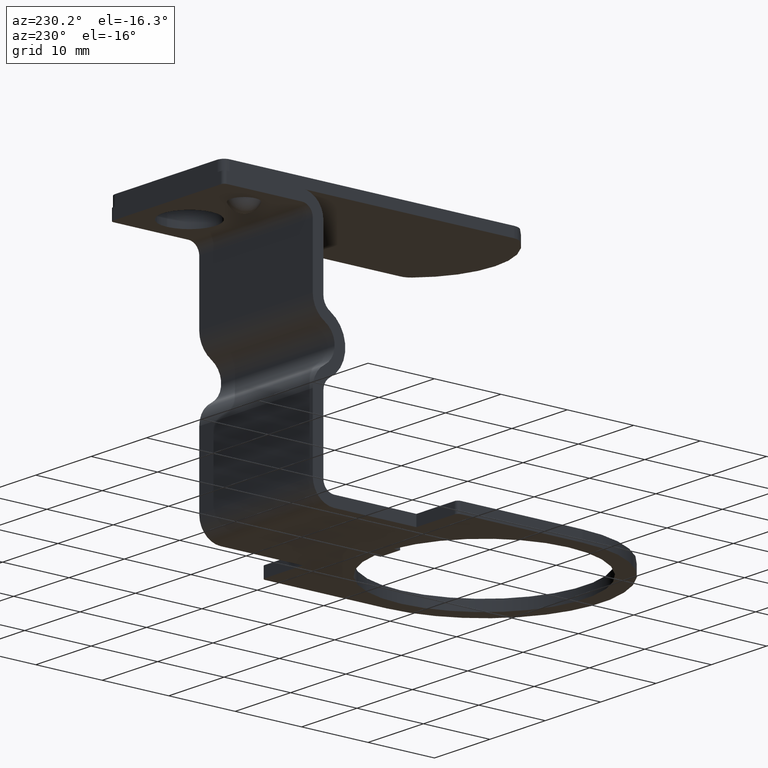
[diagram: clean part render]
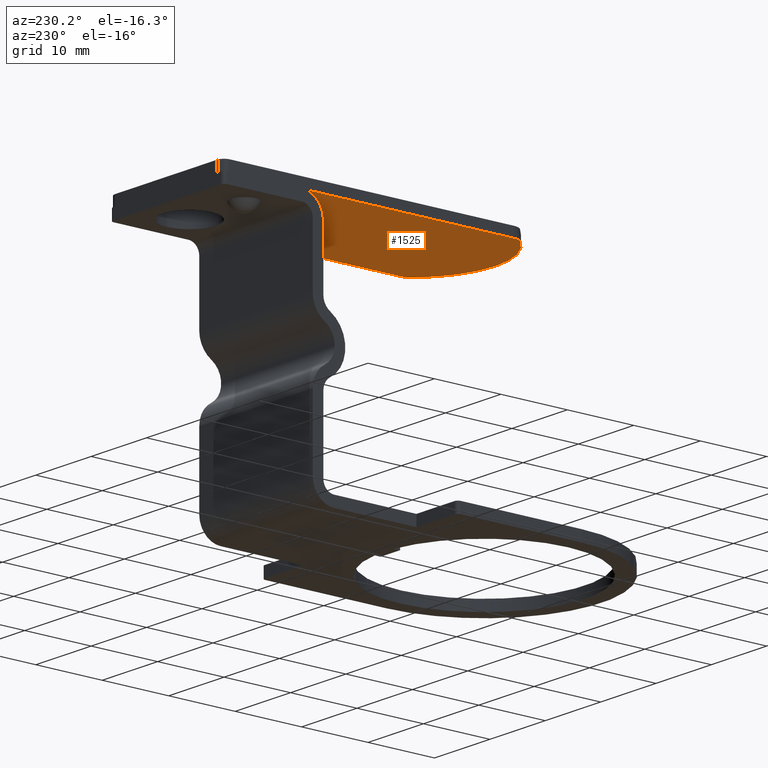
[diagram: same view with one face highlighted and labeled with its STEP entity id]
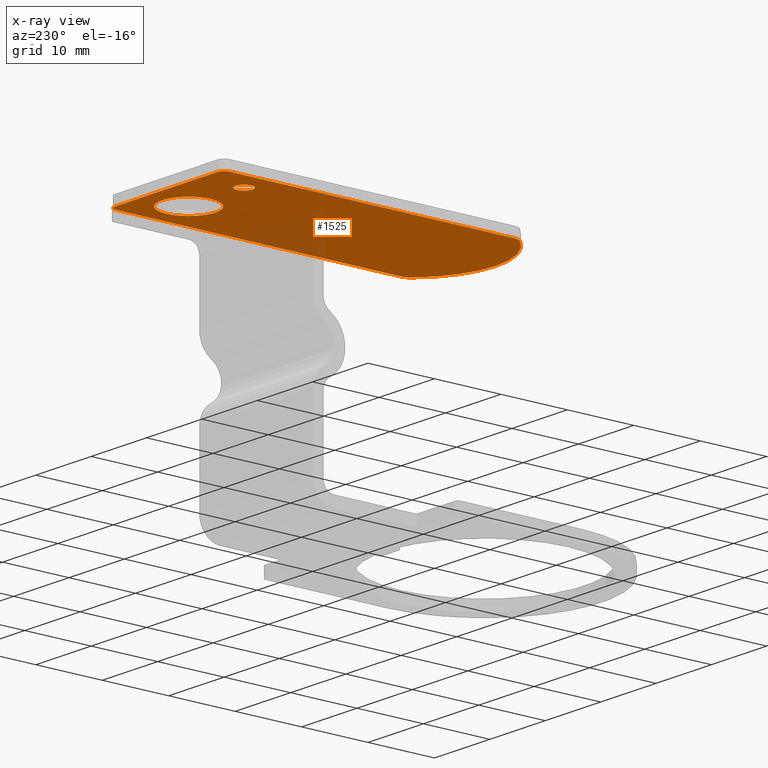
[diagram: x-ray of the same camera — body ghosted, the highlighted face saturated]
A machine part, auxiliary view. The second image highlights one B-rep face of the part: STEP entity #1525.
The next image is the same camera in x-ray: the body ghosted, the highlighted face saturated — about 12% of this face is hidden behind the body in this view.
In plain terms, the highlighted planar face has unit normal (0, -0, 1).
Its self-contained STEP definition (entity closure, byte-faithful):
#1387=CARTESIAN_POINT('',(17.590537004942465,15.195594190789063,0.0));
#1388=VERTEX_POINT('',#1387);
#1395=CARTESIAN_POINT('',(16.590537004942465,16.195594190789066,0.0));
#1396=VERTEX_POINT('',#1395);
#1397=CARTESIAN_POINT('',(16.590537004942465,15.195594190789063,0.0));
#1398=DIRECTION('',(0.0,0.0,1.000000000000000));
#1399=DIRECTION('',(0.707106781186548,0.707106781186548,0.0));
#1400=AXIS2_PLACEMENT_3D('',#1397,#1398,#1399);
#1401=CIRCLE('',#1400,1.000000000000000);
#1402=EDGE_CURVE('',#1388,#1396,#1401,.T.);
#1419=CARTESIAN_POINT('',(-1.909462995057537,16.195594190789066,0.0));
#1420=VERTEX_POINT('',#1419);
#1421=CARTESIAN_POINT('',(-1.909462995057537,16.195594190789066,0.0));
#1422=DIRECTION('',(1.0,0.0,0.0));
#1423=VECTOR('',#1422,18.500000000000004);
#1424=LINE('',#1421,#1423);
#1425=EDGE_CURVE('',#1420,#1396,#1424,.T.);
#1444=CARTESIAN_POINT('',(7.340537004942467,-7.090099953186206,0.0));
#1445=DIRECTION('',(0.0,0.0,1.0));
#1446=DIRECTION('',(1.0,0.0,0.0));
#1447=AXIS2_PLACEMENT_3D('',#1444,#1445,#1446);
#1448=PLANE('',#1447);
#1449=ORIENTED_EDGE('',*,*,#1402,.F.);
#1450=CARTESIAN_POINT('',(17.590537004942473,-27.580221914638557,0.0));
#1451=VERTEX_POINT('',#1450);
#1452=CARTESIAN_POINT('',(17.590537004942465,15.195594190789063,0.0));
#1453=DIRECTION('',(0.0,-1.0,0.0));
#1454=VECTOR('',#1453,42.775816105427623);
#1455=LINE('',#1452,#1454);
#1456=EDGE_CURVE('',#1388,#1451,#1455,.T.);
#1457=ORIENTED_EDGE('',*,*,#1456,.T.);
#1458=CARTESIAN_POINT('',(17.090537004942476,-28.903097570170850,0.0));
#1459=VERTEX_POINT('',#1458);
#1460=CARTESIAN_POINT('',(15.590537004942506,-27.580221914638567,0.0));
#1461=DIRECTION('',(0.0,0.0,-1.0));
#1462=DIRECTION('',(-0.749999999999997,0.661437827766151,0.0));
#1463=AXIS2_PLACEMENT_3D('',#1460,#1461,#1462);
#1464=CIRCLE('',#1463,1.999999999999966);
#1465=EDGE_CURVE('',#1451,#1459,#1464,.T.);
#1466=ORIENTED_EDGE('',*,*,#1465,.T.);
#1467=CARTESIAN_POINT('',(-2.409462995057530,-28.903097570170864,0.0));
#1468=VERTEX_POINT('',#1467);
#1469=CARTESIAN_POINT('',(7.340537004942465,-20.304405809210941,0.0));
#1470=DIRECTION('',(0.0,0.0,-1.0));
#1471=DIRECTION('',(0.750000000000000,0.661437827766148,0.0));
#1472=AXIS2_PLACEMENT_3D('',#1469,#1470,#1471);
#1473=CIRCLE('',#1472,13.0);
#1474=EDGE_CURVE('',#1459,#1468,#1473,.T.);
#1475=ORIENTED_EDGE('',*,*,#1474,.T.);
#1476=CARTESIAN_POINT('',(-2.909462995057528,-27.580221914638571,0.0));
#1477=VERTEX_POINT('',#1476);
#1478=CARTESIAN_POINT('',(-0.909462995057510,-27.580221914638567,0.0));
#1479=DIRECTION('',(0.0,0.0,-1.0));
#1480=DIRECTION('',(1.0,0.0,0.0));
#1481=AXIS2_PLACEMENT_3D('',#1478,#1479,#1480);
#1482=CIRCLE('',#1481,2.000000000000018);
#1483=EDGE_CURVE('',#1468,#1477,#1482,.T.);
#1484=ORIENTED_EDGE('',*,*,#1483,.T.);
#1485=CARTESIAN_POINT('',(-2.909462995057537,15.195594190789063,0.0));
#1486=VERTEX_POINT('',#1485);
#1487=CARTESIAN_POINT('',(-2.909462995057528,-27.580221914638571,0.0));
#1488=DIRECTION('',(0.0,1.0,0.0));
#1489=VECTOR('',#1488,42.775816105427637);
#1490=LINE('',#1487,#1489);
#1491=EDGE_CURVE('',#1477,#1486,#1490,.T.);
#1492=ORIENTED_EDGE('',*,*,#1491,.T.);
#1493=CARTESIAN_POINT('',(-1.909462995057537,15.195594190789063,0.0));
#1494=DIRECTION('',(0.0,0.0,1.0));
#1495=DIRECTION('',(-0.707106781186547,0.707106781186548,0.0));
#1496=AXIS2_PLACEMENT_3D('',#1493,#1494,#1495);
#1497=CIRCLE('',#1496,1.000000000000000);
#1498=EDGE_CURVE('',#1420,#1486,#1497,.T.);
#1499=ORIENTED_EDGE('',*,*,#1498,.F.);
#1500=ORIENTED_EDGE('',*,*,#1425,.T.);
#1501=EDGE_LOOP('',(#1449,#1457,#1466,#1475,#1484,#1492,#1499,#1500));
#1502=FACE_OUTER_BOUND('',#1501,.T.);
#1503=CARTESIAN_POINT('',(2.340537004942464,9.695594190789066,0.0));
#1504=VERTEX_POINT('',#1503);
#1505=CARTESIAN_POINT('',(1.090537004942464,9.695594190789066,0.0));
#1506=DIRECTION('',(0.0,0.0,1.0));
#1507=DIRECTION('',(-1.0,0.0,0.0));
#1508=AXIS2_PLACEMENT_3D('',#1505,#1506,#1507);
#1509=CIRCLE('',#1508,1.250000000000000);
#1510=EDGE_CURVE('',#1504,#1504,#1509,.T.);
#1511=ORIENTED_EDGE('',*,*,#1510,.T.);
#1512=EDGE_LOOP('',(#1511));
#1513=FACE_BOUND('',#1512,.T.);
#1514=CARTESIAN_POINT('',(15.090537004942464,9.695594190789066,0.0));
#1515=VERTEX_POINT('',#1514);
#1516=CARTESIAN_POINT('',(11.090537004942465,9.695594190789066,0.0));
#1517=DIRECTION('',(0.0,0.0,1.0));
#1518=DIRECTION('',(-1.0,0.0,0.0));
#1519=AXIS2_PLACEMENT_3D('',#1516,#1517,#1518);
#1520=CIRCLE('',#1519,4.0);
#1521=EDGE_CURVE('',#1515,#1515,#1520,.T.);
#1522=ORIENTED_EDGE('',*,*,#1521,.T.);
#1523=EDGE_LOOP('',(#1522));
#1524=FACE_BOUND('',#1523,.T.);
#1525=ADVANCED_FACE('',(#1502,#1513,#1524),#1448,.F.);